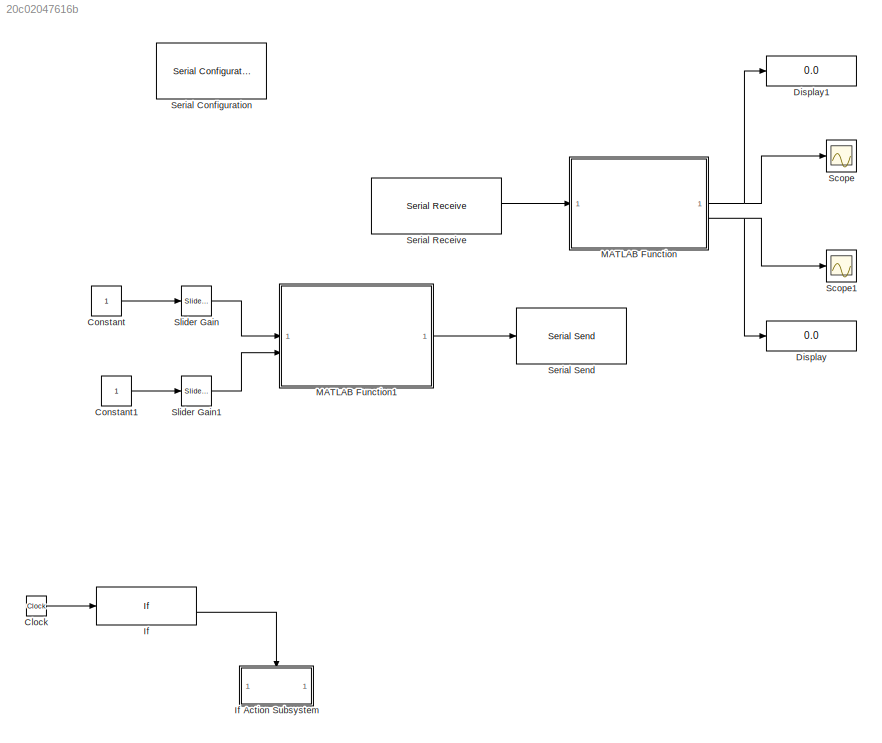
MODEL slx_20c02047616b
KIND model
CONFIG AbsTol = auto
CONFIG EnableMultiTasking = off
CONFIG FixedStep = 0.001
CONFIG MaxStep = auto
CONFIG MinStep = auto
CONFIG RelTol = 1e-3
CONFIG SampleTimeConstraint = Unconstrained
CONFIG SolverName = FixedStepAuto
CONFIG StartTime = 0.0
CONFIG StopTime = inf
BLOCK [Clock] Clock
BLOCK [Constant] Constant
BLOCK [Constant] Constant1
BLOCK [Display] Display
  Decimation = 1
BLOCK [Display] Display1
  Decimation = 1
BLOCK [If] If
  IfExpression = u1 < 1
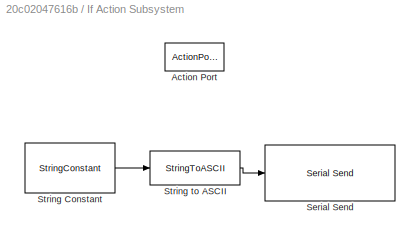
BLOCK [SubSystem] If Action Subsystem
  TreatAsAtomicUnit = on
BLOCK [ActionPort] If Action Subsystem/Action Port
  ActionPortLabel = else
BLOCK [Reference] If Action Subsystem/Serial Send  REF=instrumentseriallib/Serial Send
  Priority = 1
  SourceBlock = instrumentseriallib/Serial Send
  SourceType = system.SerialSend
BLOCK [StringConstant] If Action Subsystem/String Constant
  String = "1111,5556"
BLOCK [StringToASCII] If Action Subsystem/String to ASCII
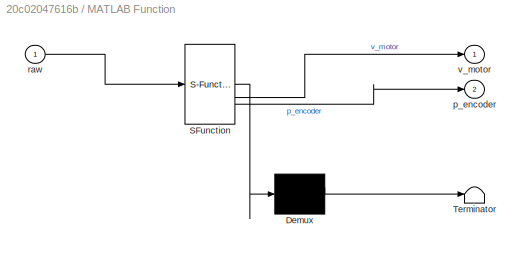
BLOCK [SubSystem] MATLAB Function
  ErrorFcn = Stateflow.Translate.translate
  PermitHierarchicalResolution = ExplicitOnly
  SFBlockType = MATLAB Function
  TreatAsAtomicUnit = on
BLOCK [Demux] MATLAB Function/ Demux 
  Outputs = 1
BLOCK [S-Function] MATLAB Function/ SFunction 
  EnableBusSupport = off
  FunctionName = sf_sfun
  PortCounts = [1 3]
  SFcnIsStateOwnerBlock = off
  SFunctionDeploymentMode = off
  Tag = Stateflow S-Function 2
BLOCK [Terminator] MATLAB Function/ Terminator 
BLOCK [Outport] MATLAB Function/p_encoder
  Port = 2
BLOCK [Inport] MATLAB Function/raw
BLOCK [Outport] MATLAB Function/v_motor
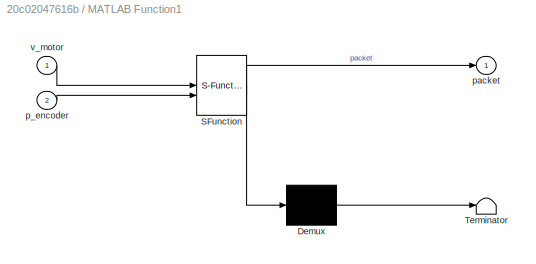
BLOCK [SubSystem] MATLAB Function1
  ErrorFcn = Stateflow.Translate.translate
  PermitHierarchicalResolution = ExplicitOnly
  SFBlockType = MATLAB Function
  TreatAsAtomicUnit = on
BLOCK [Demux] MATLAB Function1/ Demux 
  Outputs = 1
BLOCK [S-Function] MATLAB Function1/ SFunction 
  EnableBusSupport = off
  FunctionName = sf_sfun
  PortCounts = [2 2]
  SFcnIsStateOwnerBlock = off
  SFunctionDeploymentMode = off
  Tag = Stateflow S-Function 1
BLOCK [Terminator] MATLAB Function1/ Terminator 
BLOCK [Inport] MATLAB Function1/p_encoder
  Port = 2
BLOCK [Outport] MATLAB Function1/packet
BLOCK [Inport] MATLAB Function1/v_motor
BLOCK [Scope] Scope
  Floating = off
  GraphicalSettings = {"GraphicalSettings":{"LegacySettings":true,"Style":{"Style":{"PlotType":"Auto"}}}}
  NumInputPorts = 1
  WasSavedAsWebScope = on
BLOCK [Scope] Scope1
  ActiveDisplayYMaximum = 1.1
  ActiveDisplayYMinimum = 0.9
  DataLoggingVariableName = ScopeData1
  Floating = off
  GraphicalSettings = {"Style":{"BackgroundColor":[0.12941176470588237,0.12941176470588237,0.12941176470588237],"AxesColor":[0.07058823529411765,0.07058823529411765,0.07058823529411765],"LabelsColor":[0.8509803921568627,0.8509803921568627,0.8509803921568627],"PreserveColors":false,"Visible":[true],"LineStyle":["-"],"LineWidth":[1.5],"BarWidth":[0.9],"LineColor":["auto"],"LineFaceAlpha":[1],"LineEdgeAlpha":[1],"Marker":...<+1938ch>
  MultipleDisplayCache = [{"MaxYLimMag":1.1,"MaxYLimReal":1.1,"MinYLimMag":0.9,"MinYLimReal":0.9,"PlotAsMagnitudePhase":false,"ShowGrid":true,"ShowLegend":false,"Title":"%<SignalLabel>","YLabel":""}]
  NumInputPorts = 1
  ScopeFrameLocation = window
  Visible = on
  WasSavedAsWebScope = on
  WindowPosition = [680.000000,390.000000,560.000000,420.000000,]
BLOCK [Reference] Serial Configuration  REF=instrumentseriallib/Serial Configuration
  LibrarySourceBlock = embeddedtargetslib/Host Communication/Serial Configuration
  Priority = -200000
  SourceBlock = instrumentseriallib/Serial Configuration
  SourceType = system.SerialConfiguration
BLOCK [Reference] Serial Receive  REF=instrumentseriallib/Serial Receive
  Priority = 1
  SourceBlock = instrumentseriallib/Serial Receive
  SourceType = system.SerialReceive
BLOCK [Reference] Serial Send  REF=instrumentseriallib/Serial Send
  LibrarySourceBlock = embeddedtargetslib/Host Communication/Serial Send
  Priority = 1
  SourceBlock = instrumentseriallib/Serial Send
  SourceType = system.SerialSend
BLOCK [Reference] Slider Gain  REF=simulink/Math
Operations/Slider
Gain
  SourceBlock = simulink/Math\nOperations/Slider\nGain
  SourceType = Slider Gain
BLOCK [Reference] Slider Gain1  REF=simulink/Math
Operations/Slider
Gain
  SourceBlock = simulink/Math\nOperations/Slider\nGain
  SourceType = Slider Gain
LINE Clock:1 -> If:1
LINE Constant1:1 -> Slider Gain1:1
LINE Constant:1 -> Slider Gain:1
LINE If Action Subsystem/String Constant:1 -> If Action Subsystem/String to ASCII:1
LINE If Action Subsystem/String to ASCII:1 -> If Action Subsystem/Serial Send:1
LINE If:2 -> If Action Subsystem:ifaction
LINE MATLAB Function1:1 -> Serial Send:1
NET MATLAB Function:1 -> Display1:1, Scope:1
NET MATLAB Function:2 -> Display:1, Scope1:1
LINE Serial Receive:1 -> MATLAB Function:1
LINE Slider Gain1:1 -> MATLAB Function1:2
LINE Slider Gain:1 -> MATLAB Function1:1
note: NET lines group one-source signal fan-out (src -> all destinations, sorted); 1:1 wires keep LINE
CHART MATLAB Function states=1 transitions=1
  STATE_LABEL 'eML_blk_kernel()'
  STATE_LABEL "SCRIPT:\nfunction [v_motor, p_encoder] = unpack(raw)\n\n% Cast inputs and outputs explicitly so Simulink can infer types\nstr = char(raw(:)');\n\nvals = sscanf(str(2:end), '%d,%d');\n\n% Force scalar double outputs — Simulink needs this to be unambiguous\nif numel(vals) >= 2\n    v_motor   = double(vals(1));\n    p_encoder = double(vals(2));\nelse\n    v_motor   = double(0);\n    p_encoder = double(0);\nend"
CHART MATLAB Function1 states=1 transitions=1
  STATE_LABEL 'eML_blk_kernel()'
  STATE_LABEL "SCRIPT:\nfunction packet = pack(v_motor, p_encoder)\n\nstr = sprintf('#%+07d,%+07d\\n', int32(v_motor), int32(p_encoder));\n\n% Tell Simulink: packet is always exactly 18 uint8 elements\npacket = uint8(zeros(1, 17));\nfor i = 1:17\n    packet(i) = uint8(str(i));\nend\n"
CHART  states=0 transitions=0
CHART  states=0 transitions=0
